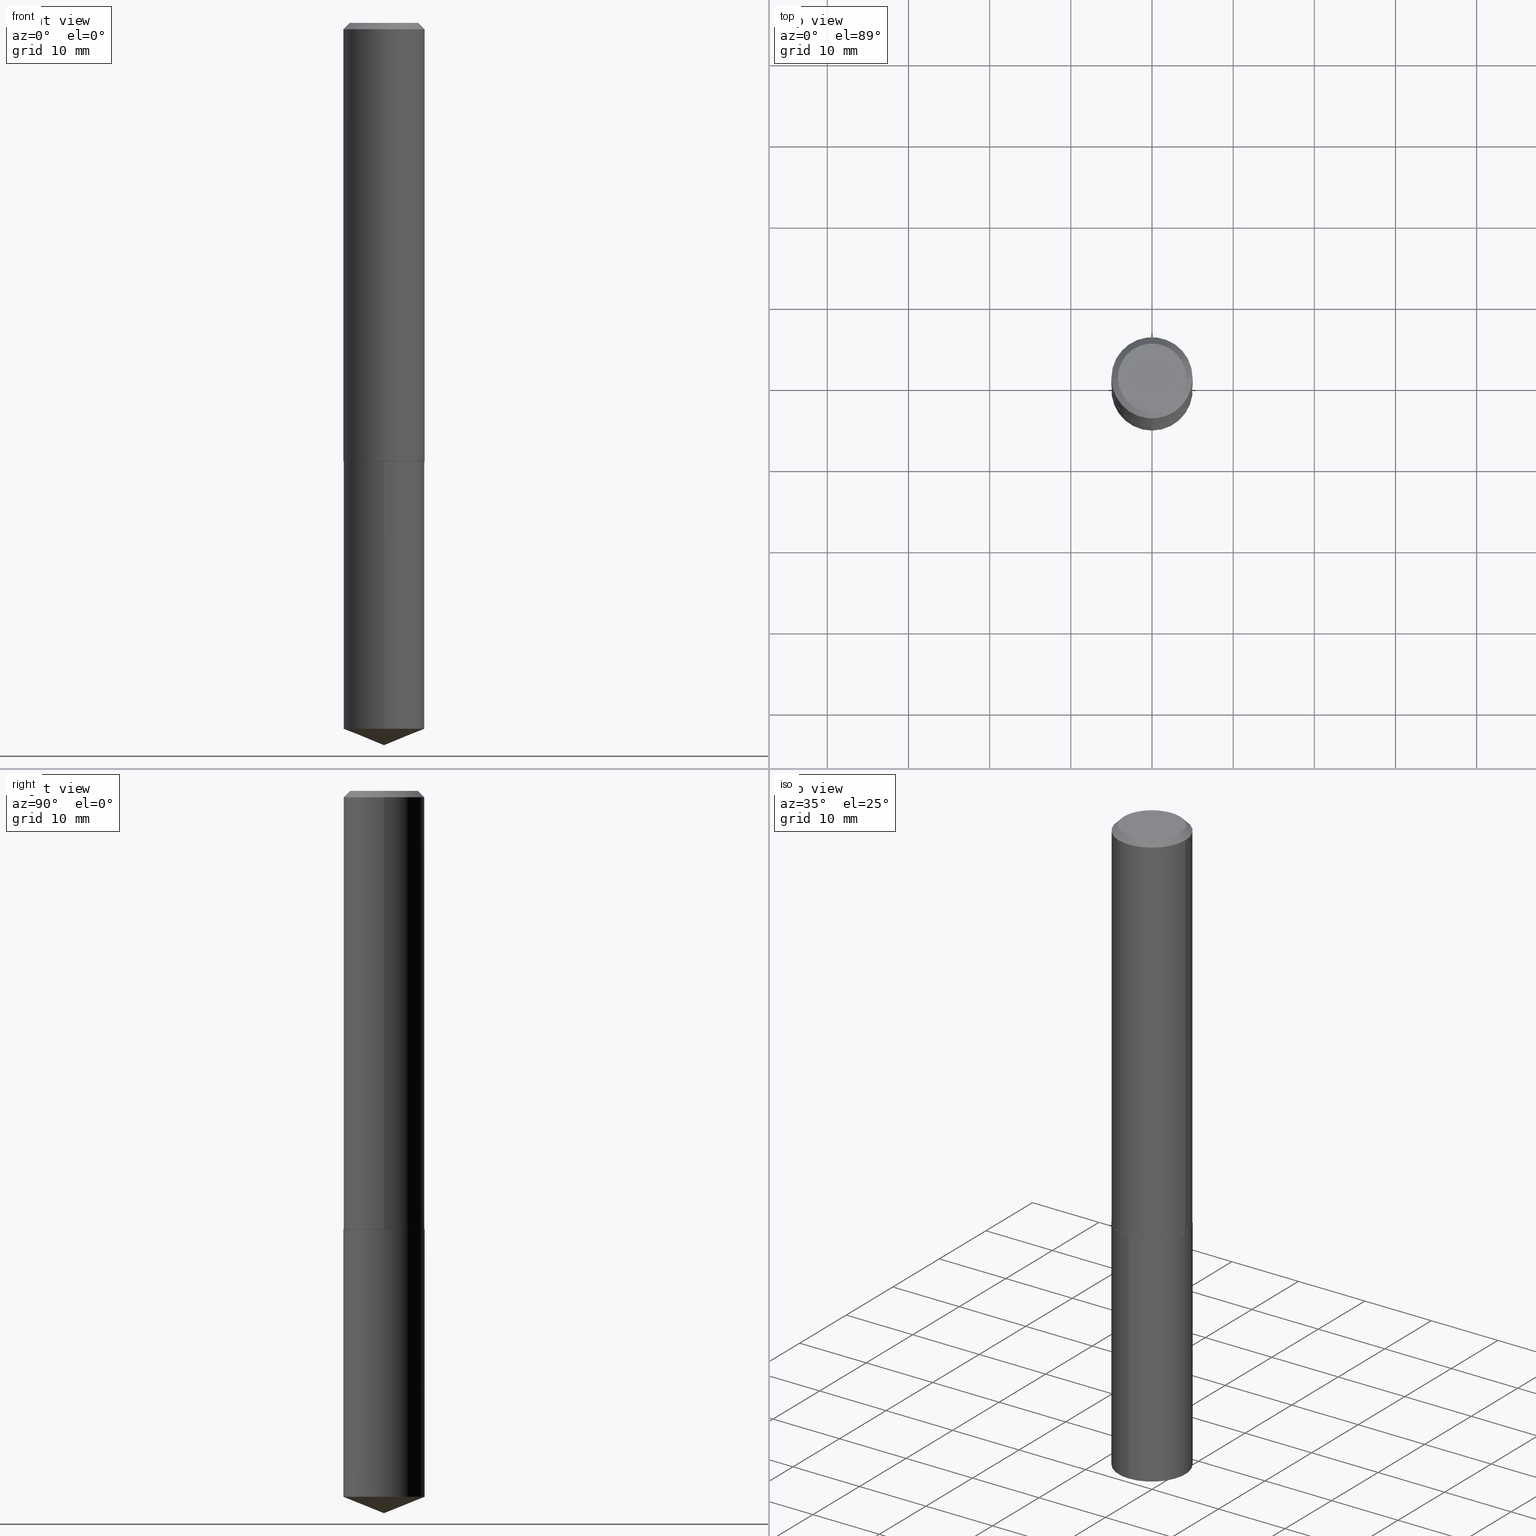
[diagram: canonical four-view strip — front | top / right | iso, engineering-drawing reading convention]
A machine part, canonical four-view strip (front | top / right | iso — engineering-drawing reading convention). The complete STEP part file that produces these views, byte-faithful:
ISO-10303-21;
HEADER;
FILE_DESCRIPTION (( 'STEP AP203' ),
    '1' );
FILE_NAME ('69190.STEP',
    '2024-04-23T14:46:41',
    ( '' ),
    ( '' ),
    'SwSTEP 2.0',
    'SolidWorks 2023',
    '' );
FILE_SCHEMA (( 'CONFIG_CONTROL_DESIGN' ));
ENDSEC;

DATA;
#1 = CARTESIAN_POINT ( 'NONE',  ( -8.770967434813484913E-28, 1.252260178076821586E-13, 35.86617874015747987 ) ) ;
#2 = ORIENTED_EDGE ( 'NONE', *, *, #259, .T. ) ;
#3 = CARTESIAN_POINT ( 'NONE',  ( 5.198822135068982087E-29, -7.422540178246643119E-15, -2.125899999999999679 ) ) ;
#4 = AXIS2_PLACEMENT_3D ( 'NONE', #263, #210, #320 ) ;
#5 = CARTESIAN_POINT ( 'NONE',  ( 5.198822135068982087E-29, -7.422540178246643119E-15, -2.125899999999999679 ) ) ;
#6 = ORIENTED_EDGE ( 'NONE', *, *, #13, .T. ) ;
#7 = FACE_OUTER_BOUND ( 'NONE', #171, .T. ) ;
#8 = ORIENTED_EDGE ( 'NONE', *, *, #283, .T. ) ;
#9 = APPROVAL_DATE_TIME ( #46, #146 ) ;
#10 = VECTOR ( 'NONE', #69, 39.37007874015748143 ) ;
#11 = EDGE_LOOP ( 'NONE', ( #253, #50 ) ) ;
#12 = APPROVAL_DATE_TIME ( #372, #63 ) ;
#13 = EDGE_CURVE ( 'NONE', #191, #45, #212, .T. ) ;
#14 = VERTEX_POINT ( 'NONE', #82 ) ;
#15 = COORDINATED_UNIVERSAL_TIME_OFFSET ( 5, 0, .BEHIND. ) ;
#16 = VERTEX_POINT ( 'NONE', #51 ) ;
#17 = CALENDAR_DATE ( 2024, 23, 4 ) ;
#18 = CARTESIAN_POINT ( 'NONE',  ( 5.198822135068982087E-29, -7.422540178246643119E-15, -2.125899999999999679 ) ) ;
#19 = APPLICATION_CONTEXT ( 'configuration controlled 3d designs of mechanical parts and assemblies' ) ;
#20 = EDGE_CURVE ( 'NONE', #202, #40, #291, .T. ) ;
#21 = DIRECTION ( 'NONE',  ( -2.445468806185136597E-29, 3.491481338843145583E-15, 1.000000000000000000 ) ) ;
#22 = DIRECTION ( 'NONE',  ( -2.445470202318777158E-29, 3.491479339500309281E-15, 1.000000000000000000 ) ) ;
#23 = APPROVAL_DATE_TIME ( #318, #109 ) ;
#24 = DIRECTION ( 'NONE',  ( -2.445470202318777158E-29, 3.491479339500309281E-15, 1.000000000000000000 ) ) ;
#25 = LINE ( 'NONE', #379, #251 ) ;
#26 = SECURITY_CLASSIFICATION ( '', '', #313 ) ;
#27 = CARTESIAN_POINT ( 'NONE',  ( 5.197599400665889285E-29, -7.420794437577220826E-15, -2.125399999999999956 ) ) ;
#28 = ORIENTED_EDGE ( 'NONE', *, *, #243, .T. ) ;
#29 = CARTESIAN_POINT ( 'NONE',  ( -0.1968500000000000250, -2.366248239364276387E-15, -0.03125000000000020817 ) ) ;
#30 = CC_DESIGN_DATE_AND_TIME_ASSIGNMENT ( #203, #347, ( #186 ) ) ;
#31 = DIRECTION ( 'NONE',  ( 2.438088387897960049E-29, -3.491481338843145188E-15, -1.000000000000000000 ) ) ;
#32 = ORGANIZATION ( 'UNSPECIFIED', 'UNSPECIFIED', '' ) ;
#33 = CONICAL_SURFACE ( 'NONE', #296, 0.1968500000000000250, 0.7853981633974450594 ) ;
#34 = UNCERTAINTY_MEASURE_WITH_UNIT (LENGTH_MEASURE( 1.000000000000000082E-05 ), #230, 'distance_accuracy_value', 'NONE');
#35 = DIRECTION ( 'NONE',  ( -1.000000000000000000, 6.982962677686265922E-15, -4.876176775795935793E-29 ) ) ;
#36 = EDGE_CURVE ( 'NONE', #14, #254, #104, .T. ) ;
#37 = CARTESIAN_POINT ( 'NONE',  ( -0.1963500000000003576, -6.024740289407571873E-15, -2.125899999999999679 ) ) ;
#38 = ADVANCED_FACE ( 'NONE', ( #178 ), #226, .F. ) ;
#39 = DIRECTION ( 'NONE',  ( -2.445468806185136597E-29, 3.491481338843145583E-15, 1.000000000000000000 ) ) ;
#40 = VERTEX_POINT ( 'NONE', #173 ) ;
#41 = DIRECTION ( 'NONE',  ( 1.000000000000000000, -6.982962677686265133E-15, 0.000000000000000000 ) ) ;
#42 = ADVANCED_FACE ( 'NONE', ( #354 ), #344, .T. ) ;
#43 = VERTEX_POINT ( 'NONE', #86 ) ;
#44 = APPROVAL_ROLE ( '' ) ;
#45 = VERTEX_POINT ( 'NONE', #239 ) ;
#46 = DATE_AND_TIME ( #232, #235 ) ;
#47 = LOCAL_TIME ( 10, 46, 41.00000000000000000, #165 ) ;
#48 = ORIENTED_EDGE ( 'NONE', *, *, #85, .T. ) ;
#49 = DIRECTION ( 'NONE',  ( 6.982962677686265922E-15, 1.000000000000000000, -3.491479339500309675E-15 ) ) ;
#50 = ORIENTED_EDGE ( 'NONE', *, *, #286, .T. ) ;
#51 = CARTESIAN_POINT ( 'NONE',  ( -1.374596203102457595E-15, -0.1968500000000119321, -3.424367437444348905 ) ) ;
#52 = PERSON_AND_ORGANIZATION ( #99, #32 ) ;
#53 = DIRECTION ( 'NONE',  ( 6.588037525764794446E-15, 0.9271838545667895337, 0.3746065934159066302 ) ) ;
#54 = AXIS2_PLACEMENT_3D ( 'NONE', #357, #21, #117 ) ;
#55 = CC_DESIGN_APPROVAL ( #146, ( #268 ) ) ;
#56 = DIRECTION ( 'NONE',  ( -6.982962677686265133E-15, -1.000000000000000000, 2.775563112689116301E-15 ) ) ;
#57 = CARTESIAN_POINT ( 'NONE',  ( -1.178467787315320954E-46, 1.682539673960460375E-32, 4.818985154644838991E-18 ) ) ;
#58 = DIRECTION ( 'NONE',  ( -2.445468806185136877E-29, 3.491481338843145188E-15, 1.000000000000000000 ) ) ;
#59 = ORIENTED_EDGE ( 'NONE', *, *, #162, .F. ) ;
#60 = DIRECTION ( 'NONE',  ( -6.982962677686265133E-15, -1.000000000000000000, 2.775563112689116301E-15 ) ) ;
#61 = LOCAL_TIME ( 10, 46, 41.00000000000000000, #237 ) ;
#62 = DIRECTION ( 'NONE',  ( -6.982962677686266711E-15, -1.000000000000000000, 3.498761904101812964E-15 ) ) ;
#63 = APPROVAL ( #285, 'UNSPECIFIED' ) ;
#64 = DIRECTION ( 'NONE',  ( -2.445468806185136597E-29, 3.491481338843145583E-15, 1.000000000000000000 ) ) ;
#65 = ADVANCED_FACE ( 'NONE', ( #84 ), #293, .T. ) ;
#66 = DIRECTION ( 'NONE',  ( 1.000000000000000000, -6.982962677686265133E-15, 0.000000000000000000 ) ) ;
#67 = AXIS2_PLACEMENT_3D ( 'NONE', #18, #22, #206 ) ;
#68 = DIRECTION ( 'NONE',  ( -2.445468806185136597E-29, 3.491481338843145583E-15, 1.000000000000000000 ) ) ;
#69 = DIRECTION ( 'NONE',  ( 0.7071067811865452413, -7.319954787623248157E-15, -0.7071067811865497932 ) ) ;
#70 = DIRECTION ( 'NONE',  ( -6.982962677686265133E-15, -1.000000000000000000, 4.163344669033674845E-15 ) ) ;
#71 = APPROVAL_PERSON_ORGANIZATION ( #167, #63, #44 ) ;
#72 = APPROVAL_ROLE ( '' ) ;
#73 = EDGE_CURVE ( 'NONE', #279, #375, #141, .T. ) ;
#74 = EDGE_LOOP ( 'NONE', ( #100, #248 ) ) ;
#75 = APPLICATION_PROTOCOL_DEFINITION ( 'international standard', 'config_control_design', 1994, #330 ) ;
#76 = ORIENTED_EDGE ( 'NONE', *, *, #228, .F. ) ;
#77 =( NAMED_UNIT ( * ) PLANE_ANGLE_UNIT ( ) SI_UNIT ( $, .RADIAN. ) );
#78 = CLOSED_SHELL ( 'NONE', ( #92, #265, #214, #65, #38 ) ) ;
#79 = ORIENTED_EDGE ( 'NONE', *, *, #162, .T. ) ;
#80 = COORDINATED_UNIVERSAL_TIME_OFFSET ( 5, 0, .BEHIND. ) ;
#81 = SHAPE_DEFINITION_REPRESENTATION ( #382, #144 ) ;
#82 = CARTESIAN_POINT ( 'NONE',  ( 8.568683041904762204E-29, -1.223379445767513415E-14, -3.503899999999999793 ) ) ;
#83 = VECTOR ( 'NONE', #97, 39.37007874015748143 ) ;
#84 = FACE_OUTER_BOUND ( 'NONE', #90, .T. ) ;
#85 = EDGE_CURVE ( 'NONE', #231, #342, #25, .T. ) ;
#86 = CARTESIAN_POINT ( 'NONE',  ( 0.1968500000000000250, -1.483704994941390709E-15, -0.03125000000000020817 ) ) ;
#87 = EDGE_CURVE ( 'NONE', #16, #254, #274, .T. ) ;
#88 = DIRECTION ( 'NONE',  ( -0.7071067811865452413, 2.468850131082233000E-15, -0.7071067811865497932 ) ) ;
#89 = AXIS2_PLACEMENT_3D ( 'NONE', #329, #68, #188 ) ;
#90 = EDGE_LOOP ( 'NONE', ( #385, #176, #163, #151 ) ) ;
#91 = DIRECTION ( 'NONE',  ( -2.445468806185136877E-29, 3.491481338843145188E-15, 1.000000000000000000 ) ) ;
#92 = ADVANCED_FACE ( 'NONE', ( #182 ), #378, .T. ) ;
#93 = ORIENTED_EDGE ( 'NONE', *, *, #140, .F. ) ;
#94 = CARTESIAN_POINT ( 'NONE',  ( 7.642090019328602662E-31, -1.091087918388490267E-16, -0.03125000000000020817 ) ) ;
#95 = CARTESIAN_POINT ( 'NONE',  ( 5.197599400665889285E-29, -7.420794437577220826E-15, -2.125399999999999956 ) ) ;
#96 = AXIS2_PLACEMENT_3D ( 'NONE', #213, #31, #35 ) ;
#97 = DIRECTION ( 'NONE',  ( -2.445470202318777158E-29, 3.491479339500309675E-15, 1.000000000000000000 ) ) ;
#98 = DIRECTION ( 'NONE',  ( -2.445470202318777158E-29, 3.491479339500309281E-15, 1.000000000000000000 ) ) ;
#99 = PERSON ( 'UNSPECIFIED', 'UNSPECIFIED', 'UNSPECIFIED', ('UNSPECIFIED'), ('UNSPECIFIED'), ('UNSPECIFIED') ) ;
#100 = ORIENTED_EDGE ( 'NONE', *, *, #384, .T. ) ;
#101 = VECTOR ( 'NONE', #88, 39.37007874015748143 ) ;
#102 = LOCAL_TIME ( 10, 46, 41.00000000000000000, #290 ) ;
#103 = ORIENTED_EDGE ( 'NONE', *, *, #314, .F. ) ;
#104 = LINE ( 'NONE', #317, #363 ) ;
#105 = ORIENTED_EDGE ( 'NONE', *, *, #13, .F. ) ;
#106 = APPROVAL_STATUS ( 'not_yet_approved' ) ;
#107 = ORIENTED_EDGE ( 'NONE', *, *, #158, .F. ) ;
#108 = PERSON_AND_ORGANIZATION_ROLE ( 'design_supplier' ) ;
#109 = APPROVAL ( #337, 'UNSPECIFIED' ) ;
#110 = ORIENTED_EDGE ( 'NONE', *, *, #351, .T. ) ;
#111 = MANIFOLD_SOLID_BREP ( 'Body-Move/Copy2[2]', #369 ) ;
#112 = EDGE_CURVE ( 'NONE', #191, #231, #300, .T. ) ;
#113 = CARTESIAN_POINT ( 'NONE',  ( -1.374596203102489543E-15, -0.1968500000000074357, -2.125899999999999235 ) ) ;
#114 = AXIS2_PLACEMENT_3D ( 'NONE', #288, #200, #306 ) ;
#115 = DIRECTION ( 'NONE',  ( -2.445468806185136597E-29, 3.491481338843145583E-15, 1.000000000000000000 ) ) ;
#116 = PRODUCT_RELATED_PRODUCT_CATEGORY ( 'detail', '', ( #348 ) ) ;
#117 = DIRECTION ( 'NONE',  ( 1.000000000000000000, -6.982962677686267499E-15, 0.000000000000000000 ) ) ;
#118 = DIRECTION ( 'NONE',  ( -1.000000000000000000, 6.982962677686265922E-15, 0.000000000000000000 ) ) ;
#119 = VECTOR ( 'NONE', #325, 39.37007874015748143 ) ;
#120 = DIRECTION ( 'NONE',  ( -6.982962677686266711E-15, -1.000000000000000000, 3.498761904101812964E-15 ) ) ;
#121 = PLANE ( 'NONE',  #96 ) ;
#122 = LINE ( 'NONE', #246, #10 ) ;
#123 = AXIS2_PLACEMENT_3D ( 'NONE', #94, #365, #362 ) ;
#124 = FACE_OUTER_BOUND ( 'NONE', #339, .T. ) ;
#125 = CC_DESIGN_PERSON_AND_ORGANIZATION_ASSIGNMENT ( #172, #134, ( #348 ) ) ;
#126 = ORIENTED_EDGE ( 'NONE', *, *, #307, .F. ) ;
#127 = LINE ( 'NONE', #270, #142 ) ;
#128 = ORIENTED_EDGE ( 'NONE', *, *, #384, .F. ) ;
#129 = APPROVAL_PERSON_ORGANIZATION ( #227, #146, #308 ) ;
#130 = ORIENTED_EDGE ( 'NONE', *, *, #87, .F. ) ;
#131 = APPLICATION_PROTOCOL_DEFINITION ( 'international standard', 'config_control_design', 1994, #19 ) ;
#132 = ORIENTED_EDGE ( 'NONE', *, *, #158, .T. ) ;
#133 = EDGE_LOOP ( 'NONE', ( #312, #8, #277, #76 ) ) ;
#134 = PERSON_AND_ORGANIZATION_ROLE ( 'design_owner' ) ;
#135 = AXIS2_PLACEMENT_3D ( 'NONE', #234, #238, #349 ) ;
#136 = AXIS2_PLACEMENT_3D ( 'NONE', #241, #149, #56 ) ;
#137 = DATE_AND_TIME ( #17, #102 ) ;
#138 = DIMENSIONAL_EXPONENTS ( 1.000000000000000000, 0.000000000000000000, 0.000000000000000000, 0.000000000000000000, 0.000000000000000000, 0.000000000000000000, 0.000000000000000000 ) ;
#139 = CARTESIAN_POINT ( 'NONE',  ( -0.1968500000000000250, 1.265487411263692705E-15, -0.03125000000000020817 ) ) ;
#140 = EDGE_CURVE ( 'NONE', #342, #148, #297, .T. ) ;
#141 = CIRCLE ( 'NONE', #193, 0.1655999999999999972 ) ;
#142 = VECTOR ( 'NONE', #91, 39.37007874015748143 ) ;
#143 = DIRECTION ( 'NONE',  ( 2.445468806185136597E-29, -3.491481338843145583E-15, -1.000000000000000000 ) ) ;
#144 = ADVANCED_BREP_SHAPE_REPRESENTATION ( '69190', ( #361, #111, #114 ), #292 ) ;
#145 = CARTESIAN_POINT ( 'NONE',  ( 7.642090019328602662E-31, -1.091087918388490267E-16, -0.03125000000000020817 ) ) ;
#146 = APPROVAL ( #106, 'UNSPECIFIED' ) ;
#147 = ORIENTED_EDGE ( 'NONE', *, *, #314, .T. ) ;
#148 = VERTEX_POINT ( 'NONE', #29 ) ;
#149 = DIRECTION ( 'NONE',  ( -2.445470202318777158E-29, 3.491479339500309281E-15, 1.000000000000000000 ) ) ;
#150 = AXIS2_PLACEMENT_3D ( 'NONE', #205, #315, #260 ) ;
#151 = ORIENTED_EDGE ( 'NONE', *, *, #286, .F. ) ;
#152 = CARTESIAN_POINT ( 'NONE',  ( -0.1968500000000002470, -6.022091062233462250E-15, -2.125399999999999956 ) ) ;
#153 = EDGE_LOOP ( 'NONE', ( #305, #28, #6, #59 ) ) ;
#154 = ADVANCED_FACE ( 'NONE', ( #261 ), #326, .T. ) ;
#155 = DIRECTION ( 'NONE',  ( -2.438088387897960049E-29, 3.491481338843145188E-15, 1.000000000000000000 ) ) ;
#156 = ORIENTED_EDGE ( 'NONE', *, *, #352, .T. ) ;
#157 = FACE_OUTER_BOUND ( 'NONE', #74, .T. ) ;
#158 = EDGE_CURVE ( 'NONE', #375, #148, #353, .T. ) ;
#159 = DIRECTION ( 'NONE',  ( 2.445468806185136597E-29, -3.491481338843145583E-15, -1.000000000000000000 ) ) ;
#160 = VECTOR ( 'NONE', #58, 39.37007874015748143 ) ;
#161 = AXIS2_PLACEMENT_3D ( 'NONE', #221, #64, #216 ) ;
#162 = EDGE_CURVE ( 'NONE', #342, #45, #168, .T. ) ;
#163 = ORIENTED_EDGE ( 'NONE', *, *, #228, .T. ) ;
#164 = CARTESIAN_POINT ( 'NONE',  ( 5.197599400665889285E-29, -7.420794437577220826E-15, -2.125399999999999956 ) ) ;
#165 = COORDINATED_UNIVERSAL_TIME_OFFSET ( 5, 0, .BEHIND. ) ;
#166 = ORIENTED_EDGE ( 'NONE', *, *, #73, .F. ) ;
#167 = PERSON_AND_ORGANIZATION ( #99, #32 ) ;
#168 = CIRCLE ( 'NONE', #150, 0.1968500000000002470 ) ;
#169 = APPROVAL_PERSON_ORGANIZATION ( #223, #109, #72 ) ;
#170 = DIRECTION ( 'NONE',  ( 2.445470202318776597E-29, -3.491479339500309675E-15, -1.000000000000000000 ) ) ;
#171 = EDGE_LOOP ( 'NONE', ( #373, #310 ) ) ;
#172 = PERSON_AND_ORGANIZATION ( #99, #32 ) ;
#173 = CARTESIAN_POINT ( 'NONE',  ( 1.398703375343841210E-15, 0.1968499999999926420, -2.125900000000000567 ) ) ;
#174 = ORIENTED_EDGE ( 'NONE', *, *, #351, .F. ) ;
#175 =( NAMED_UNIT ( * ) SI_UNIT ( $, .STERADIAN. ) SOLID_ANGLE_UNIT ( ) );
#176 = ORIENTED_EDGE ( 'NONE', *, *, #217, .T. ) ;
#177 = PERSON_AND_ORGANIZATION_ROLE ( 'classification_officer' ) ;
#178 = FACE_OUTER_BOUND ( 'NONE', #11, .T. ) ;
#179 = CC_DESIGN_APPROVAL ( #109, ( #26 ) ) ;
#180 = DIRECTION ( 'NONE',  ( 1.000000000000000000, -6.982962677686266711E-15, 4.876363190812712291E-29 ) ) ;
#181 = FACE_OUTER_BOUND ( 'NONE', #271, .T. ) ;
#182 = FACE_OUTER_BOUND ( 'NONE', #133, .T. ) ;
#183 = CARTESIAN_POINT ( 'NONE',  ( -0.1968500000000001082, 1.398703375343757985E-15, -9.682923725166787881E-30 ) ) ;
#184 = ADVANCED_FACE ( 'NONE', ( #181 ), #380, .T. ) ;
#185 = LINE ( 'NONE', #366, #119 ) ;
#186 = PRODUCT_DEFINITION ( 'UNKNOWN', '', #268, #360 ) ;
#187 = AXIS2_PLACEMENT_3D ( 'NONE', #145, #143, #118 ) ;
#188 = DIRECTION ( 'NONE',  ( 1.000000000000000000, -6.982962677686266711E-15, 4.876363190812712291E-29 ) ) ;
#189 = DIRECTION ( 'NONE',  ( -1.000000000000000000, 6.982962677686265922E-15, 0.000000000000000000 ) ) ;
#190 = DIRECTION ( 'NONE',  ( -2.445468806185136597E-29, 3.491481338843145583E-15, 1.000000000000000000 ) ) ;
#191 = VERTEX_POINT ( 'NONE', #264 ) ;
#192 = PLANE ( 'NONE',  #356 ) ;
#193 = AXIS2_PLACEMENT_3D ( 'NONE', #57, #209, #180 ) ;
#194 = CIRCLE ( 'NONE', #208, 0.1968500000000000250 ) ;
#195 = EDGE_LOOP ( 'NONE', ( #2, #199, #371, #126 ) ) ;
#196 =( LENGTH_UNIT ( ) NAMED_UNIT ( * ) SI_UNIT ( $, .METRE. ) );
#197 = ORIENTED_EDGE ( 'NONE', *, *, #36, .T. ) ;
#198 = PERSON_AND_ORGANIZATION_ROLE ( 'creator' ) ;
#199 = ORIENTED_EDGE ( 'NONE', *, *, #140, .T. ) ;
#200 = DIRECTION ( 'NONE',  ( 0.000000000000000000, 0.000000000000000000, 1.000000000000000000 ) ) ;
#201 = CC_DESIGN_APPROVAL ( #63, ( #186 ) ) ;
#202 = VERTEX_POINT ( 'NONE', #113 ) ;
#203 = DATE_AND_TIME ( #280, #47 ) ;
#204 = LENGTH_MEASURE_WITH_UNIT ( LENGTH_MEASURE( 0.02539999999999999897 ), #196 );
#205 = CARTESIAN_POINT ( 'NONE',  ( 5.197599400665889285E-29, -7.420794437577220826E-15, -2.125399999999999956 ) ) ;
#206 = DIRECTION ( 'NONE',  ( -6.982962677686265133E-15, -1.000000000000000000, 4.163344669033674845E-15 ) ) ;
#207 = CC_DESIGN_PERSON_AND_ORGANIZATION_ASSIGNMENT ( #374, #108, ( #268 ) ) ;
#208 = AXIS2_PLACEMENT_3D ( 'NONE', #272, #220, #299 ) ;
#209 = DIRECTION ( 'NONE',  ( -2.445468806185136597E-29, 3.491481338843145583E-15, 1.000000000000000000 ) ) ;
#210 = DIRECTION ( 'NONE',  ( -2.445468806185136597E-29, 3.491481338843145583E-15, 1.000000000000000000 ) ) ;
#211 = DIRECTION ( 'NONE',  ( -6.982962677686265133E-15, -1.000000000000000000, 4.163344669033674845E-15 ) ) ;
#212 = LINE ( 'NONE', #333, #309 ) ;
#213 = CARTESIAN_POINT ( 'NONE',  ( -5.892338936576604772E-47, 8.412698369802301877E-33, 2.409492577322419495E-18 ) ) ;
#214 = ADVANCED_FACE ( 'NONE', ( #383 ), #350, .T. ) ;
#215 = ORIENTED_EDGE ( 'NONE', *, *, #338, .F. ) ;
#216 = DIRECTION ( 'NONE',  ( 1.000000000000000000, -6.982962677686266711E-15, 4.876176775795935793E-29 ) ) ;
#217 = EDGE_CURVE ( 'NONE', #254, #16, #303, .T. ) ;
#218 = AXIS2_PLACEMENT_3D ( 'NONE', #355, #298, #62 ) ;
#219 = CARTESIAN_POINT ( 'NONE',  ( -0.1655999999999999972, 1.210933015344269141E-15, 4.818985154636560574E-18 ) ) ;
#220 = DIRECTION ( 'NONE',  ( -2.445468806185136597E-29, 3.491481338843145583E-15, 1.000000000000000000 ) ) ;
#221 = CARTESIAN_POINT ( 'NONE',  ( 0.000000000000000000, 0.000000000000000000, 0.000000000000000000 ) ) ;
#222 = ORIENTED_EDGE ( 'NONE', *, *, #217, .F. ) ;
#223 = PERSON_AND_ORGANIZATION ( #99, #32 ) ;
#224 = CIRCLE ( 'NONE', #123, 0.1968500000000000250 ) ;
#225 = PERSON_AND_ORGANIZATION ( #99, #32 ) ;
#226 = PLANE ( 'NONE',  #334 ) ;
#227 = PERSON_AND_ORGANIZATION ( #99, #32 ) ;
#228 = EDGE_CURVE ( 'NONE', #16, #202, #267, .T. ) ;
#229 = EDGE_LOOP ( 'NONE', ( #284, #147, #222 ) ) ;
#230 =( CONVERSION_BASED_UNIT ( 'INCH', #204 ) LENGTH_UNIT ( ) NAMED_UNIT ( #138 ) );
#231 = VERTEX_POINT ( 'NONE', #37 ) ;
#232 = CALENDAR_DATE ( 2024, 23, 4 ) ;
#233 = ADVANCED_FACE ( 'NONE', ( #304 ), #33, .T. ) ;
#234 = CARTESIAN_POINT ( 'NONE',  ( 5.198822135068982087E-29, -7.422540178246643119E-15, -2.125899999999999679 ) ) ;
#235 = LOCAL_TIME ( 10, 46, 41.00000000000000000, #15 ) ;
#236 = DIRECTION ( 'NONE',  ( 1.000000000000000000, -6.982962677686265133E-15, 0.000000000000000000 ) ) ;
#237 = COORDINATED_UNIVERSAL_TIME_OFFSET ( 5, 0, .BEHIND. ) ;
#238 = DIRECTION ( 'NONE',  ( -2.445470202318777158E-29, 3.491479339500309281E-15, 1.000000000000000000 ) ) ;
#239 = CARTESIAN_POINT ( 'NONE',  ( 0.1968500000000002470, -8.795390640679764012E-15, -2.125399999999999956 ) ) ;
#240 = AXIS2_PLACEMENT_3D ( 'NONE', #95, #190, #66 ) ;
#241 = CARTESIAN_POINT ( 'NONE',  ( 8.374185562020359502E-29, -1.195611240909750023E-14, -3.424367437444349793 ) ) ;
#242 = CARTESIAN_POINT ( 'NONE',  ( 8.568677105823750269E-29, -1.223380295848100452E-14, -3.503899999999999793 ) ) ;
#243 = EDGE_CURVE ( 'NONE', #231, #191, #245, .T. ) ;
#244 = CARTESIAN_POINT ( 'NONE',  ( 7.642090019328602662E-31, -1.091087918388490267E-16, -0.03125000000000020817 ) ) ;
#245 = CIRCLE ( 'NONE', #275, 0.1963500000000003576 ) ;
#246 = CARTESIAN_POINT ( 'NONE',  ( 0.1968500000000000250, -1.459597822700175121E-15, -0.03125000000000020817 ) ) ;
#247 = CARTESIAN_POINT ( 'NONE',  ( 1.398703375343840618E-15, 0.1968499999999880345, -3.424367437444350237 ) ) ;
#248 = ORIENTED_EDGE ( 'NONE', *, *, #73, .T. ) ;
#249 = CYLINDRICAL_SURFACE ( 'NONE', #161, 0.1968500000000001082 ) ;
#250 = ADVANCED_FACE ( 'NONE', ( #324 ), #249, .T. ) ;
#251 = VECTOR ( 'NONE', #323, 39.37007874015748854 ) ;
#252 = ADVANCED_FACE ( 'NONE', ( #157 ), #121, .F. ) ;
#253 = ORIENTED_EDGE ( 'NONE', *, *, #20, .T. ) ;
#254 = VERTEX_POINT ( 'NONE', #247 ) ;
#255 = PERSON_AND_ORGANIZATION_ROLE ( 'creator' ) ;
#256 = CALENDAR_DATE ( 2024, 23, 4 ) ;
#257 = AXIS2_PLACEMENT_3D ( 'NONE', #164, #278, #41 ) ;
#258 = CC_DESIGN_DATE_AND_TIME_ASSIGNMENT ( #137, #368, ( #26 ) ) ;
#259 = EDGE_CURVE ( 'NONE', #45, #342, #262, .T. ) ;
#260 = DIRECTION ( 'NONE',  ( 1.000000000000000000, -6.982962677686265133E-15, 0.000000000000000000 ) ) ;
#261 = FACE_OUTER_BOUND ( 'NONE', #153, .T. ) ;
#262 = CIRCLE ( 'NONE', #257, 0.1968500000000002470 ) ;
#263 = CARTESIAN_POINT ( 'NONE',  ( 0.000000000000000000, 0.000000000000000000, 0.000000000000000000 ) ) ;
#264 = CARTESIAN_POINT ( 'NONE',  ( 0.1963500000000003576, -8.793644900010343298E-15, -2.125899999999999679 ) ) ;
#265 = ADVANCED_FACE ( 'NONE', ( #124 ), #388, .T. ) ;
#266 = EDGE_LOOP ( 'NONE', ( #287, #48, #346, #105 ) ) ;
#267 = LINE ( 'NONE', #386, #83 ) ;
#268 = PRODUCT_DEFINITION_FORMATION_WITH_SPECIFIED_SOURCE ( 'ANY', '', #348, .NOT_KNOWN. ) ;
#269 = DIRECTION ( 'NONE',  ( -6.474490251793181784E-15, -0.9271838545667869802, 0.3746065934159131250 ) ) ;
#270 = CARTESIAN_POINT ( 'NONE',  ( 0.1968500000000001082, -1.374596203102542397E-15, 9.598753983154305062E-30 ) ) ;
#271 = EDGE_LOOP ( 'NONE', ( #166, #110, #156, #107 ) ) ;
#272 = CARTESIAN_POINT ( 'NONE',  ( 7.642090019328602662E-31, -1.091087918388490267E-16, -0.03125000000000020817 ) ) ;
#273 = CC_DESIGN_PERSON_AND_ORGANIZATION_ASSIGNMENT ( #376, #255, ( #268 ) ) ;
#274 = CIRCLE ( 'NONE', #321, 0.1968500000000000250 ) ;
#275 = AXIS2_PLACEMENT_3D ( 'NONE', #331, #39, #301 ) ;
#276 = CARTESIAN_POINT ( 'NONE',  ( 0.1655999999999999972, -1.297848145565570390E-15, 4.818985154653420164E-18 ) ) ;
#277 = ORIENTED_EDGE ( 'NONE', *, *, #20, .F. ) ;
#278 = DIRECTION ( 'NONE',  ( -2.445468806185136597E-29, 3.491481338843145583E-15, 1.000000000000000000 ) ) ;
#279 = VERTEX_POINT ( 'NONE', #276 ) ;
#280 = CALENDAR_DATE ( 2024, 23, 4 ) ;
#281 = MECHANICAL_CONTEXT ( 'NONE', #330, 'mechanical' ) ;
#282 = CONICAL_SURFACE ( 'NONE', #240, 0.1968500000000002470, 0.7853981633974482790 ) ;
#283 = EDGE_CURVE ( 'NONE', #254, #40, #185, .T. ) ;
#284 = ORIENTED_EDGE ( 'NONE', *, *, #36, .F. ) ;
#285 = APPROVAL_STATUS ( 'not_yet_approved' ) ;
#286 = EDGE_CURVE ( 'NONE', #40, #202, #327, .T. ) ;
#287 = ORIENTED_EDGE ( 'NONE', *, *, #112, .T. ) ;
#288 = CARTESIAN_POINT ( 'NONE',  ( 0.000000000000000000, 0.000000000000000000, 0.000000000000000000 ) ) ;
#289 = CC_DESIGN_PERSON_AND_ORGANIZATION_ASSIGNMENT ( #225, #177, ( #26 ) ) ;
#290 = COORDINATED_UNIVERSAL_TIME_OFFSET ( 5, 0, .BEHIND. ) ;
#291 = CIRCLE ( 'NONE', #67, 0.1968500000000000250 ) ;
#292 =( GEOMETRIC_REPRESENTATION_CONTEXT ( 3 ) GLOBAL_UNCERTAINTY_ASSIGNED_CONTEXT ( ( #34 ) ) GLOBAL_UNIT_ASSIGNED_CONTEXT ( ( #230, #77, #175 ) ) REPRESENTATION_CONTEXT ( 'NONE', 'WORKASPACE' ) );
#293 = CYLINDRICAL_SURFACE ( 'NONE', #135, 0.1968500000000000250 ) ;
#294 = CARTESIAN_POINT ( 'NONE',  ( 5.198822135068982087E-29, -7.422540178246643119E-15, -2.125899999999999679 ) ) ;
#295 = ADVANCED_FACE ( 'NONE', ( #7 ), #192, .F. ) ;
#296 = AXIS2_PLACEMENT_3D ( 'NONE', #244, #159, #189 ) ;
#297 = LINE ( 'NONE', #183, #160 ) ;
#298 = DIRECTION ( 'NONE',  ( -2.445470202318777158E-29, 3.491479339500309281E-15, 1.000000000000000000 ) ) ;
#299 = DIRECTION ( 'NONE',  ( 1.000000000000000000, -6.982962677686265922E-15, 0.000000000000000000 ) ) ;
#300 = CIRCLE ( 'NONE', #54, 0.1963500000000003576 ) ;
#301 = DIRECTION ( 'NONE',  ( 1.000000000000000000, -6.982962677686267499E-15, 0.000000000000000000 ) ) ;
#302 = LINE ( 'NONE', #242, #322 ) ;
#303 = CIRCLE ( 'NONE', #136, 0.1968500000000000250 ) ;
#304 = FACE_OUTER_BOUND ( 'NONE', #389, .T. ) ;
#305 = ORIENTED_EDGE ( 'NONE', *, *, #85, .F. ) ;
#306 = DIRECTION ( 'NONE',  ( 1.000000000000000000, 0.000000000000000000, 0.000000000000000000 ) ) ;
#307 = EDGE_CURVE ( 'NONE', #45, #43, #127, .T. ) ;
#308 = APPROVAL_ROLE ( '' ) ;
#309 = VECTOR ( 'NONE', #345, 39.37007874015748854 ) ;
#310 = ORIENTED_EDGE ( 'NONE', *, *, #243, .F. ) ;
#311 = AXIS2_PLACEMENT_3D ( 'NONE', #5, #98, #70 ) ;
#312 = ORIENTED_EDGE ( 'NONE', *, *, #87, .T. ) ;
#313 = SECURITY_CLASSIFICATION_LEVEL ( 'unclassified' ) ;
#314 = EDGE_CURVE ( 'NONE', #14, #16, #302, .T. ) ;
#315 = DIRECTION ( 'NONE',  ( -2.445468806185136597E-29, 3.491481338843145583E-15, 1.000000000000000000 ) ) ;
#316 = AXIS2_PLACEMENT_3D ( 'NONE', #27, #115, #236 ) ;
#317 = CARTESIAN_POINT ( 'NONE',  ( 8.568683093957185325E-29, -1.223379445767513415E-14, -3.503899999999999793 ) ) ;
#318 = DATE_AND_TIME ( #377, #61 ) ;
#319 = DIRECTION ( 'NONE',  ( -2.445470202318777158E-29, 3.491479339500309281E-15, 1.000000000000000000 ) ) ;
#320 = DIRECTION ( 'NONE',  ( 1.000000000000000000, -6.982962677686266711E-15, 4.876176775795935793E-29 ) ) ;
#321 = AXIS2_PLACEMENT_3D ( 'NONE', #381, #319, #60 ) ;
#322 = VECTOR ( 'NONE', #269, 39.37007874015748143 ) ;
#323 = DIRECTION ( 'NONE',  ( -0.7071067811865474617, 7.493145998870352582E-15, 0.7071067811865474617 ) ) ;
#324 = FACE_OUTER_BOUND ( 'NONE', #195, .T. ) ;
#325 = DIRECTION ( 'NONE',  ( -2.445470202318777158E-29, 3.491479339500309675E-15, 1.000000000000000000 ) ) ;
#326 = CONICAL_SURFACE ( 'NONE', #316, 0.1968500000000002470, 0.7853981633974482790 ) ;
#327 = CIRCLE ( 'NONE', #311, 0.1968500000000000250 ) ;
#328 = CC_DESIGN_PERSON_AND_ORGANIZATION_ASSIGNMENT ( #52, #198, ( #186 ) ) ;
#329 = CARTESIAN_POINT ( 'NONE',  ( -1.178467787315320954E-46, 1.682539673960460375E-32, 4.818985154644838991E-18 ) ) ;
#330 = APPLICATION_CONTEXT ( 'configuration controlled 3d designs of mechanical parts and assemblies' ) ;
#331 = CARTESIAN_POINT ( 'NONE',  ( 5.198822135068982087E-29, -7.422540178246643119E-15, -2.125899999999999679 ) ) ;
#332 = DIRECTION ( 'NONE',  ( -2.445470202318777158E-29, 3.491479339500309281E-15, 1.000000000000000000 ) ) ;
#333 = CARTESIAN_POINT ( 'NONE',  ( 0.1968500000000002470, -8.795390640679764012E-15, -2.125399999999999956 ) ) ;
#334 = AXIS2_PLACEMENT_3D ( 'NONE', #340, #170, #49 ) ;
#335 = CIRCLE ( 'NONE', #89, 0.1655999999999999972 ) ;
#336 = EDGE_LOOP ( 'NONE', ( #93, #79, #341, #215 ) ) ;
#337 = APPROVAL_STATUS ( 'not_yet_approved' ) ;
#338 = EDGE_CURVE ( 'NONE', #148, #43, #194, .T. ) ;
#339 = EDGE_LOOP ( 'NONE', ( #103, #197, #130 ) ) ;
#340 = CARTESIAN_POINT ( 'NONE',  ( 5.198822135068982087E-29, -7.422540178246643119E-15, -2.125899999999999679 ) ) ;
#341 = ORIENTED_EDGE ( 'NONE', *, *, #307, .T. ) ;
#342 = VERTEX_POINT ( 'NONE', #152 ) ;
#343 = CC_DESIGN_SECURITY_CLASSIFICATION ( #26, ( #268 ) ) ;
#344 = CYLINDRICAL_SURFACE ( 'NONE', #4, 0.1968500000000001082 ) ;
#345 = DIRECTION ( 'NONE',  ( 0.7071067811865474617, -2.468850131082256666E-15, 0.7071067811865474617 ) ) ;
#346 = ORIENTED_EDGE ( 'NONE', *, *, #259, .F. ) ;
#347 = DATE_TIME_ROLE ( 'creation_date' ) ;
#348 = PRODUCT ( '69190', '69190', '', ( #281 ) ) ;
#349 = DIRECTION ( 'NONE',  ( -6.982962677686265133E-15, -1.000000000000000000, 4.163344669033674845E-15 ) ) ;
#350 = CONICAL_SURFACE ( 'NONE', #218, 97.44436430772883284, 1.186823891356146410 ) ;
#351 = EDGE_CURVE ( 'NONE', #279, #43, #122, .T. ) ;
#352 = EDGE_CURVE ( 'NONE', #43, #148, #224, .T. ) ;
#353 = LINE ( 'NONE', #139, #101 ) ;
#354 = FACE_OUTER_BOUND ( 'NONE', #336, .T. ) ;
#355 = CARTESIAN_POINT ( 'NONE',  ( -8.770967434813484913E-28, 1.252260178076821586E-13, 35.86617874015747987 ) ) ;
#356 = AXIS2_PLACEMENT_3D ( 'NONE', #3, #155, #390 ) ;
#357 = CARTESIAN_POINT ( 'NONE',  ( 5.198822135068982087E-29, -7.422540178246643119E-15, -2.125899999999999679 ) ) ;
#358 = ADVANCED_FACE ( 'NONE', ( #359 ), #282, .T. ) ;
#359 = FACE_OUTER_BOUND ( 'NONE', #266, .T. ) ;
#360 = DESIGN_CONTEXT ( 'detailed design', #19, 'design' ) ;
#361 = MANIFOLD_SOLID_BREP ( 'Body-Move/Copy2[1]', #78 ) ;
#362 = DIRECTION ( 'NONE',  ( 1.000000000000000000, -6.982962677686265922E-15, 0.000000000000000000 ) ) ;
#363 = VECTOR ( 'NONE', #53, 39.37007874015748854 ) ;
#364 = LOCAL_TIME ( 10, 46, 41.00000000000000000, #80 ) ;
#365 = DIRECTION ( 'NONE',  ( -2.445468806185136597E-29, 3.491481338843145583E-15, 1.000000000000000000 ) ) ;
#366 = CARTESIAN_POINT ( 'NONE',  ( 1.398703375343809064E-15, 0.1968499999999926142, -2.125900000000000567 ) ) ;
#367 = ORIENTED_EDGE ( 'NONE', *, *, #338, .T. ) ;
#368 = DATE_TIME_ROLE ( 'classification_date' ) ;
#369 = CLOSED_SHELL ( 'NONE', ( #184, #250, #358, #295, #154, #42, #233, #252 ) ) ;
#370 = AXIS2_PLACEMENT_3D ( 'NONE', #1, #332, #120 ) ;
#371 = ORIENTED_EDGE ( 'NONE', *, *, #352, .F. ) ;
#372 = DATE_AND_TIME ( #256, #364 ) ;
#373 = ORIENTED_EDGE ( 'NONE', *, *, #112, .F. ) ;
#374 = PERSON_AND_ORGANIZATION ( #99, #32 ) ;
#375 = VERTEX_POINT ( 'NONE', #219 ) ;
#376 = PERSON_AND_ORGANIZATION ( #99, #32 ) ;
#377 = CALENDAR_DATE ( 2024, 23, 4 ) ;
#378 = CYLINDRICAL_SURFACE ( 'NONE', #387, 0.1968500000000000250 ) ;
#379 = CARTESIAN_POINT ( 'NONE',  ( -0.1968500000000002470, -6.022091062233462250E-15, -2.125399999999999956 ) ) ;
#380 = CONICAL_SURFACE ( 'NONE', #187, 0.1968500000000000250, 0.7853981633974450594 ) ;
#381 = CARTESIAN_POINT ( 'NONE',  ( 8.374185562020359502E-29, -1.195611240909750023E-14, -3.424367437444349793 ) ) ;
#382 = PRODUCT_DEFINITION_SHAPE ( 'NONE', 'NONE',  #186 ) ;
#383 = FACE_OUTER_BOUND ( 'NONE', #229, .T. ) ;
#384 = EDGE_CURVE ( 'NONE', #375, #279, #335, .T. ) ;
#385 = ORIENTED_EDGE ( 'NONE', *, *, #283, .F. ) ;
#386 = CARTESIAN_POINT ( 'NONE',  ( -1.374596203102489543E-15, -0.1968500000000074357, -2.125899999999999235 ) ) ;
#387 = AXIS2_PLACEMENT_3D ( 'NONE', #294, #24, #211 ) ;
#388 = CONICAL_SURFACE ( 'NONE', #370, 97.44436430772883284, 1.186823891356146410 ) ;
#389 = EDGE_LOOP ( 'NONE', ( #174, #128, #132, #367 ) ) ;
#390 = DIRECTION ( 'NONE',  ( 1.000000000000000000, -6.982962677686265922E-15, 4.876176775795935793E-29 ) ) ;
ENDSEC;
END-ISO-10303-21;
